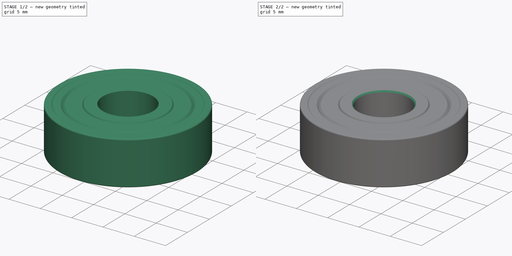
[diagram: build sequence overview — one tinted view per stage of 2, left to right]
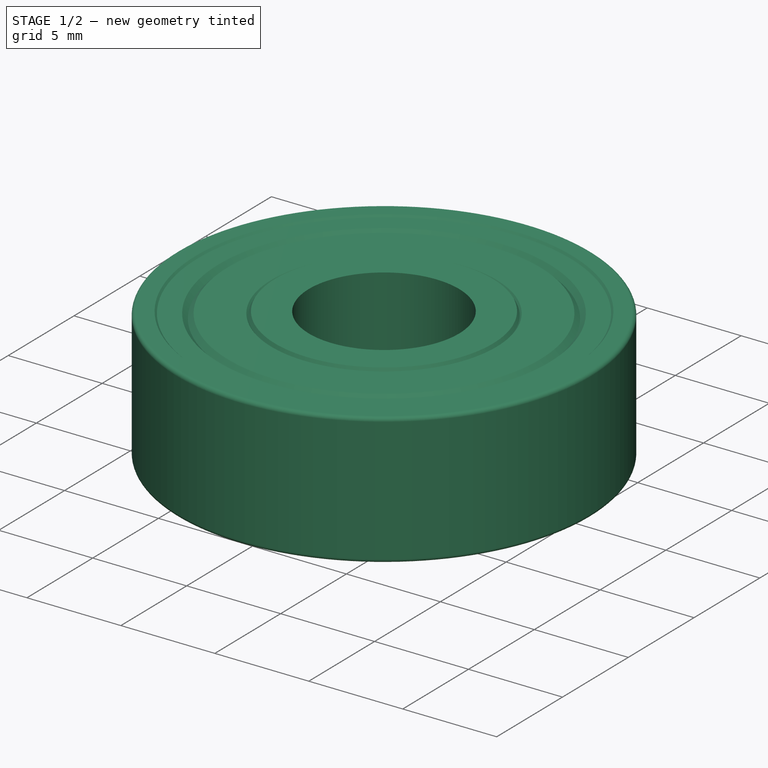
[diagram: stage 1 of 2 — iso view after this stage's code; geometry added in this stage tinted green]
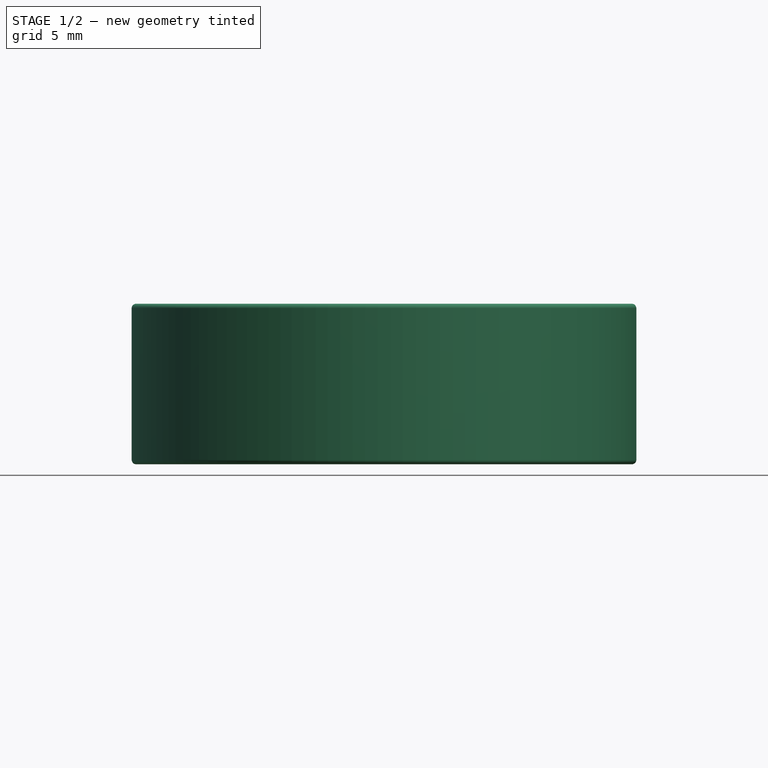
[diagram: stage 1 of 2 — front view after this stage's code; geometry added in this stage tinted green]
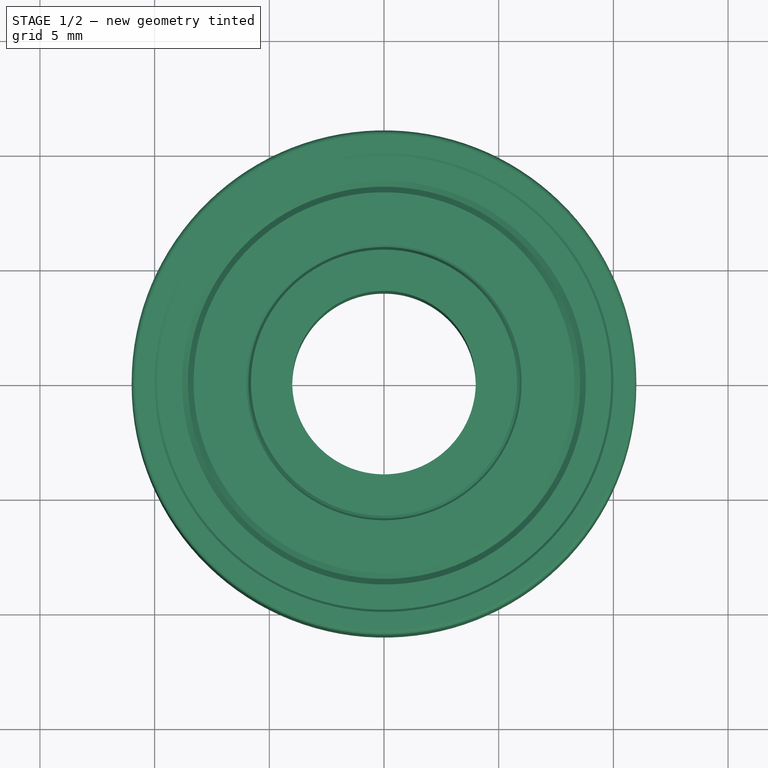
[diagram: stage 1 of 2 — top view after this stage's code; geometry added in this stage tinted green]
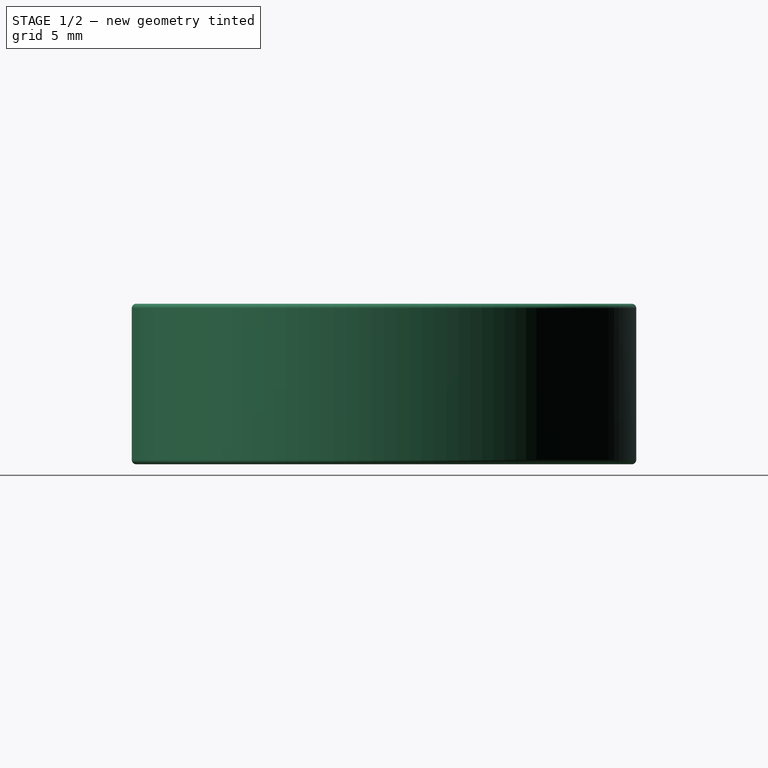
[diagram: stage 1 of 2 — right view after this stage's code; geometry added in this stage tinted green]
FCSTD DOCUMENT  (FreeCAD 0.14R3702 (Git))
Label: Bearing-608zz
License: CC-BY 3.0
LicenseURL: http://creativecommons.org/licenses/by/3.0/
objects: Sketcher::SketchObject×1, PartDesign::Revolution×1, PartDesign::Fillet×1, PartDesign::Chamfer×1, App::DocumentObjectGroup×1, Part::Feature×1
note: 6 computed .brp shape members not serialized (recipe doc carries the construction recipe); baked Part::Feature solids carry a one-line shape summary decoded from their .brp

FEATURE [Sketcher::SketchObject] Sketch  label="608-sketch"
  Placement = pos=(0,0,0) rot=(1,0,0;1.5708rad)
  sketch-geometry (22):
    g0: LineSegment StartX=4 StartY=-3.5 StartZ=0 EndX=4 EndY=3.5 EndZ=0
    g1: LineSegment StartX=4 StartY=3.5 StartZ=0 EndX=5.8 EndY=3.5 EndZ=0
    g2: LineSegment StartX=5.8 StartY=3.5 StartZ=0 EndX=5.91547 EndY=3.3 EndZ=0
    g3: LineSegment StartX=5.91547 StartY=3.3 StartZ=0 EndX=6 EndY=3.4 EndZ=0
    g4: LineSegment StartX=6 StartY=3.4 StartZ=0 EndX=8.3 EndY=3.4 EndZ=0
    g5: LineSegment StartX=8.3 StartY=3.4 StartZ=0 EndX=8.55 EndY=3.15 EndZ=0
    g6: LineSegment StartX=8.55 StartY=3.15 StartZ=0 EndX=8.8 EndY=3.4 EndZ=0
    g7: LineSegment StartX=8.8 StartY=3.4 StartZ=0 EndX=9.9 EndY=3.4 EndZ=0
    g8: LineSegment StartX=9.9 StartY=3.4 StartZ=0 EndX=10 EndY=3.5 EndZ=0
    g9: LineSegment StartX=10 StartY=3.5 StartZ=0 EndX=11 EndY=3.5 EndZ=0
    g10: LineSegment StartX=11 StartY=3.5 StartZ=0 EndX=11 EndY=-3.5 EndZ=0
    g11: LineSegment [constr] StartX=5.8 StartY=3.5 StartZ=0 EndX=10 EndY=3.5 EndZ=0
    g12: LineSegment [constr] StartX=8.3 StartY=3.4 StartZ=0 EndX=8.8 EndY=3.4 EndZ=0
    g13: LineSegment StartX=4 StartY=-3.5 StartZ=0 EndX=5.8 EndY=-3.5 EndZ=0
    g14: LineSegment StartX=5.8 StartY=-3.5 StartZ=0 EndX=5.91547 EndY=-3.3 EndZ=0
    g15: LineSegment StartX=5.91547 StartY=-3.3 StartZ=0 EndX=6 EndY=-3.4 EndZ=0
    g16: LineSegment StartX=6 StartY=-3.4 StartZ=0 EndX=8.3 EndY=-3.4 EndZ=0
    g17: LineSegment StartX=8.3 StartY=-3.4 StartZ=0 EndX=8.55 EndY=-3.15 EndZ=0
    g18: LineSegment StartX=8.55 StartY=-3.15 StartZ=0 EndX=8.8 EndY=-3.4 EndZ=0
    g19: LineSegment StartX=8.8 StartY=-3.4 StartZ=0 EndX=9.9 EndY=-3.4 EndZ=0
    g20: LineSegment StartX=9.9 StartY=-3.4 StartZ=0 EndX=10 EndY=-3.5 EndZ=0
    g21: LineSegment StartX=10 StartY=-3.5 StartZ=0 EndX=11 EndY=-3.5 EndZ=0
  constraints (59):
    c: Vertical(g0)
    c: Coincident(g0,g1)
    c: Horizontal(g1)
    c: Coincident(g1,g2)
    c: Coincident(g2,g3)
    c: Coincident(g3,g4)
    c: Horizontal(g4)
    c: Coincident(g4,g5)
    c: Coincident(g5,g6)
    c: Coincident(g6,g7)
    c: Coincident(g7,g8)
    c: Coincident(g8,g9)
    c: Horizontal(g9)
    c: Coincident(g9,g10)
    c: Vertical(g10)
    c: DistanceX(g-1,g9) = 11
    c: DistanceX(g1) = 1.8
    c: DistanceX(g-1,g0) = 4
    c: DistanceX(g3,g1) = -0.2
    c: DistanceX(g4) = 2.3
    c: DistanceX(g9) = 1
    c: DistanceX(g4,g6) = 0.5
    c: Horizontal(g7)
    c: Horizontal(g11)
    c: Coincident(g11,g1)
    c: Coincident(g11,g8)
    c: Horizontal(g12)
    c: Coincident(g12,g4)
    c: Coincident(g12,g6)
    c: DistanceY(g3,g1) = 0.1
    c: Equal(g5,g6)
    c: Angle(g12,g6) = 0.785398
    c: Angle(g11,g8) = 0.785398
    c: Angle(g2,g11) = 1.0472
    c: DistanceY(g2,g3) = 0.1
    c: Symmetric(g0,g0,g-1)
    c: DistanceY(g10) = -7
    c: Coincident(g0,g13)
    c: Horizontal(g13)
    c: Coincident(g13,g14)
    c: Coincident(g14,g15)
    c: Coincident(g15,g16)
    c: Horizontal(g16)
    c: Coincident(g16,g17)
    c: Coincident(g17,g18)
    c: Coincident(g18,g19)
    c: Horizontal(g19)
    c: Coincident(g19,g20)
    c: Coincident(g20,g21)
    c: Coincident(g21,g10)
    c: Symmetric(g2,g14,g-1)
    c: Symmetric(g13,g1,g-1)
    c: Symmetric(g3,g15,g-1)
    c: Symmetric(g4,g16,g-1)
    c: Symmetric(g5,g17,g-1)
    c: Symmetric(g6,g18,g-1)
    c: Symmetric(g7,g19,g-1)
    c: Symmetric(g8,g20,g-1)
    c: Horizontal(g21)
FEATURE [PartDesign::Revolution] Revolution  label="Top-part"
  Angle = 360
  Axis = (0,0,1)
  Base = (0,0,0)
  Placement = pos=(0,0,0) rot=(1,0,0;1.5708rad)
  ReferenceAxis = -> Sketch [V_Axis]
  Sketch = -> Sketch
FEATURE [PartDesign::Fillet] Fillet
  Base = -> Revolution [Edge17,Edge18]
  Placement = pos=(0,0,0) rot=(1,0,0;1.5708rad)
  Radius = 0.2
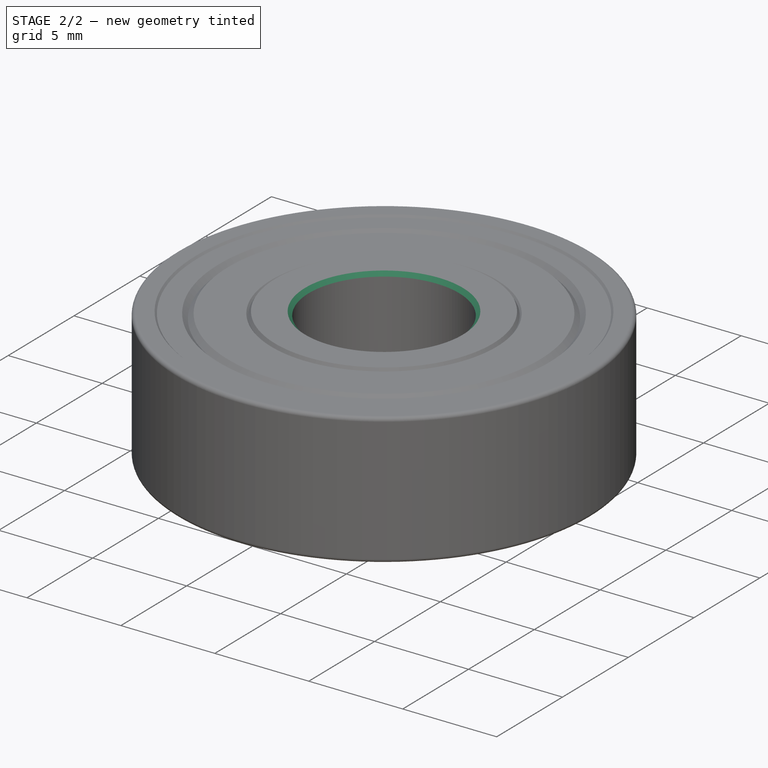
[diagram: stage 2 of 2 — iso view after this stage's code; geometry added in this stage tinted green]
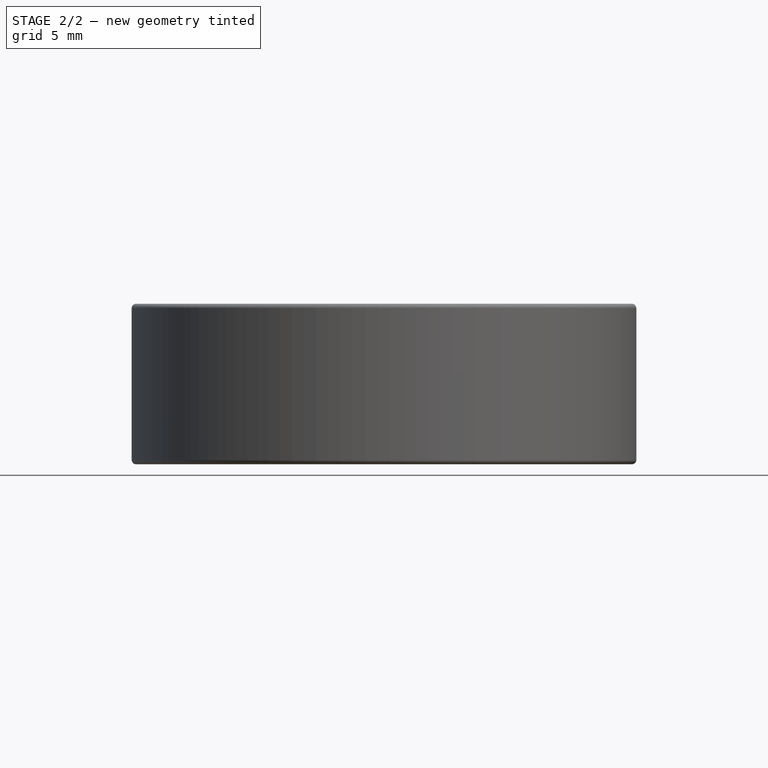
[diagram: stage 2 of 2 — front view after this stage's code; geometry added in this stage tinted green]
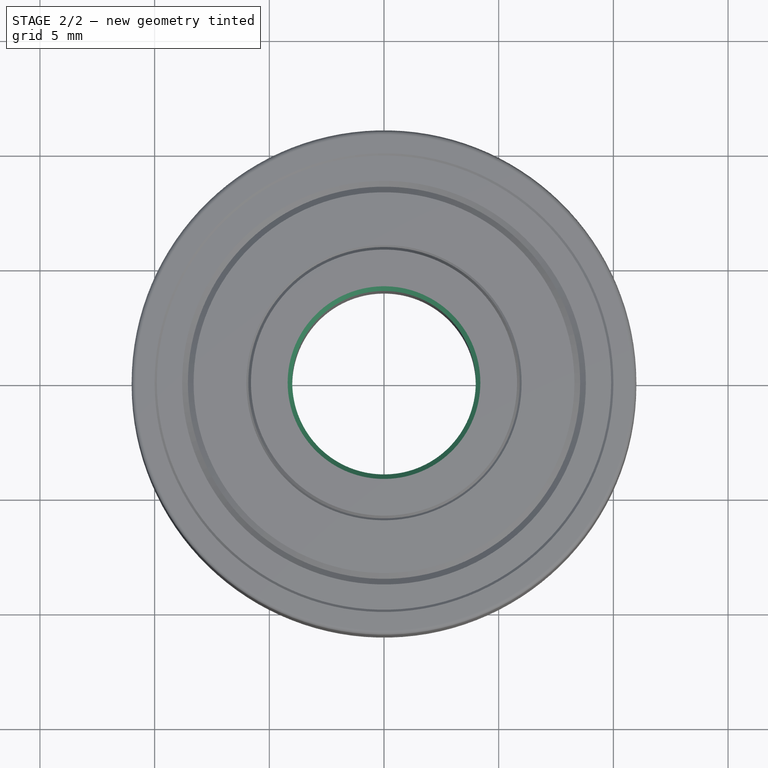
[diagram: stage 2 of 2 — top view after this stage's code; geometry added in this stage tinted green]
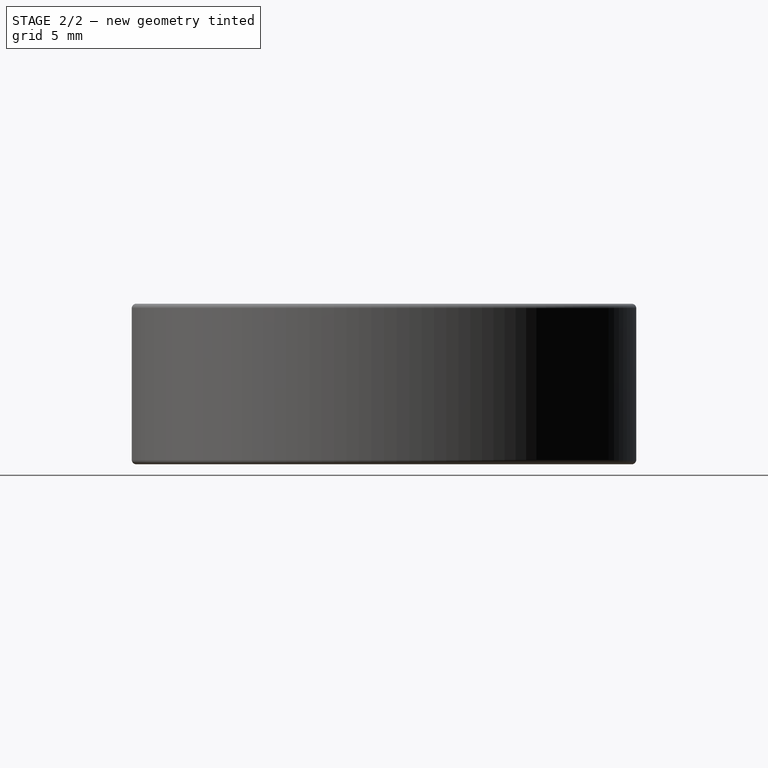
[diagram: stage 2 of 2 — right view after this stage's code; geometry added in this stage tinted green]
FEATURE [PartDesign::Chamfer] Chamfer
  Base = -> Fillet [Edge29,Edge31]
  Placement = pos=(0,0,0) rot=(1,0,0;1.5708rad)
  Size = 0.2
FEATURE [App::DocumentObjectGroup] Group  label="608zz-src"
  Group = -> [Revolution,Fillet,Chamfer]
FEATURE [Part::Feature] Chamfer001  label="608zz"
  Placement = pos=(0,0,0) rot=(1,0,0;1.5708rad)
  shape: bbox 23.81 x 23.81 x 7 mm, 24 faces (baked)
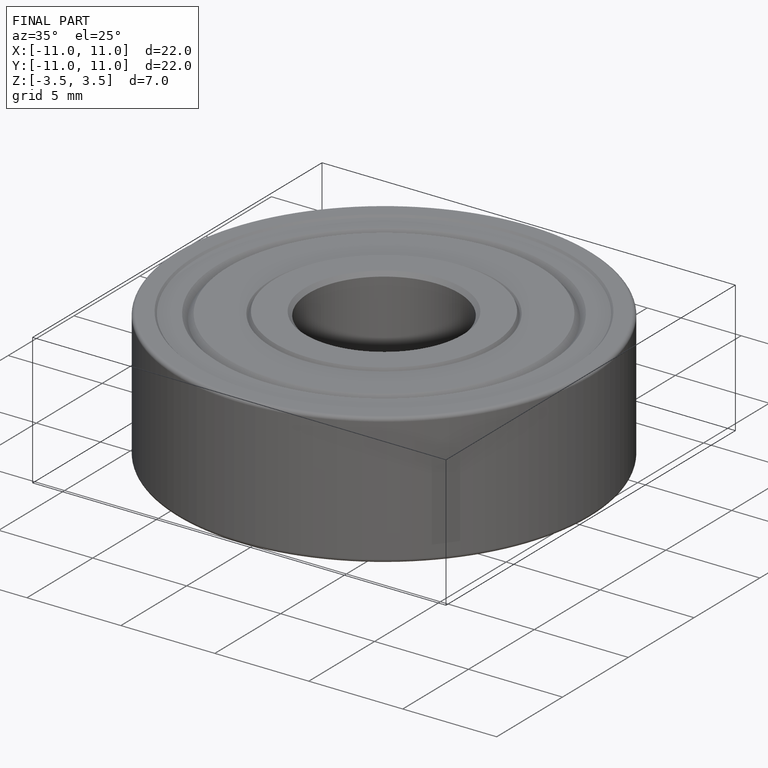
[diagram: finished part — iso view with bounding-box wireframe]
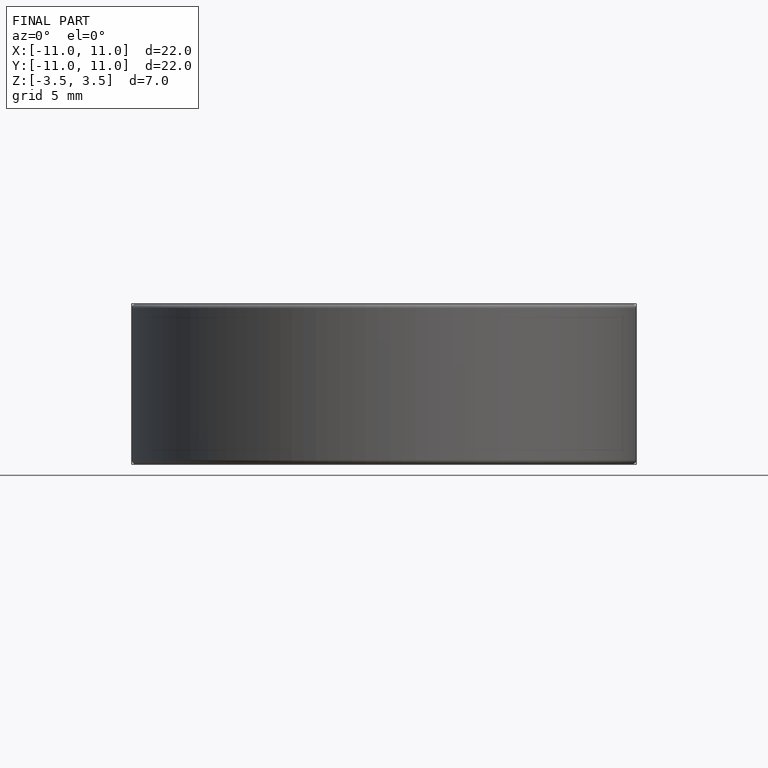
[diagram: finished part — front view with bounding-box wireframe]
